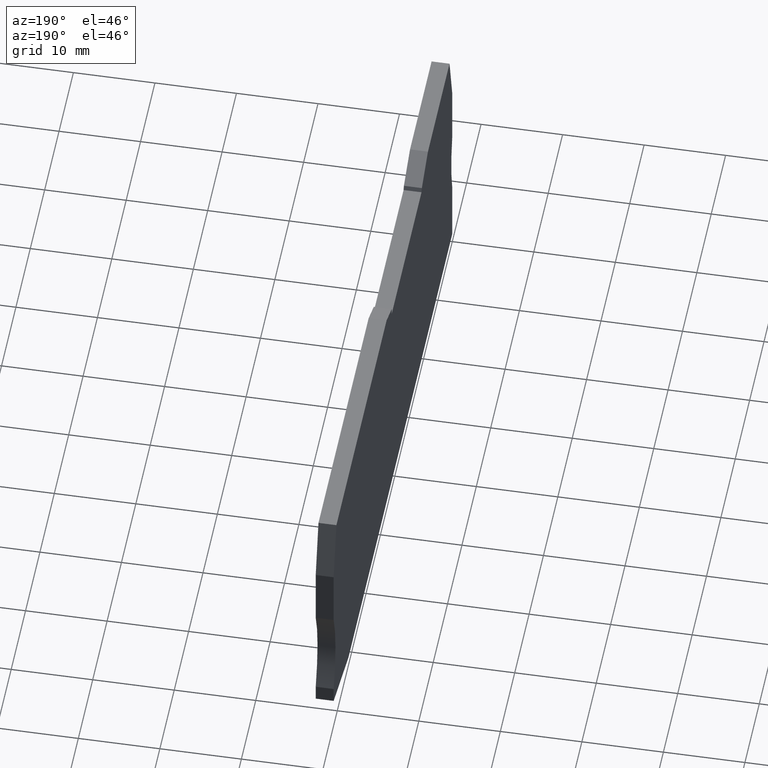
[diagram: clean part render]
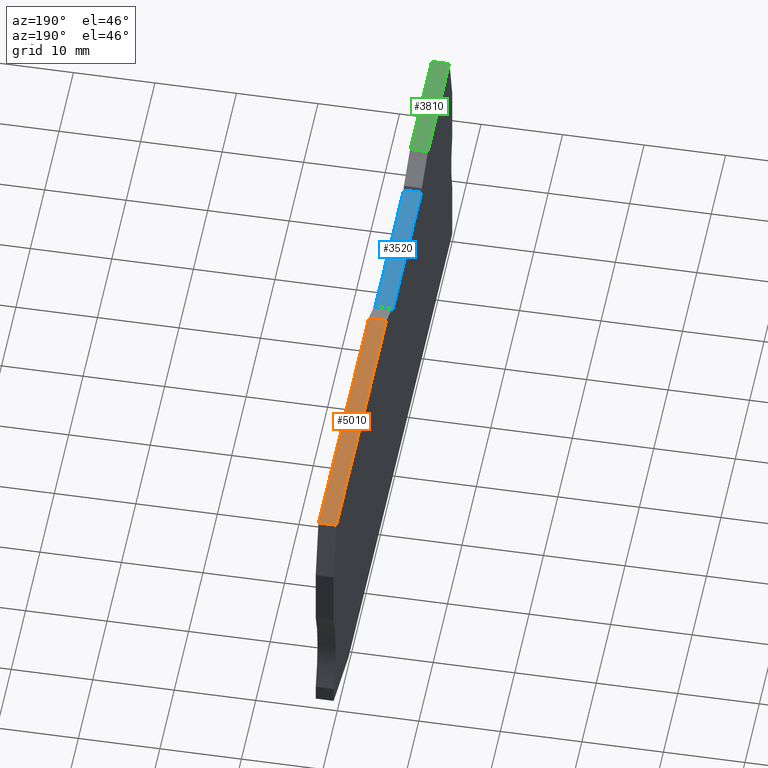
[diagram: same view with three faces highlighted in distinct colors, each labeled with its STEP entity id]
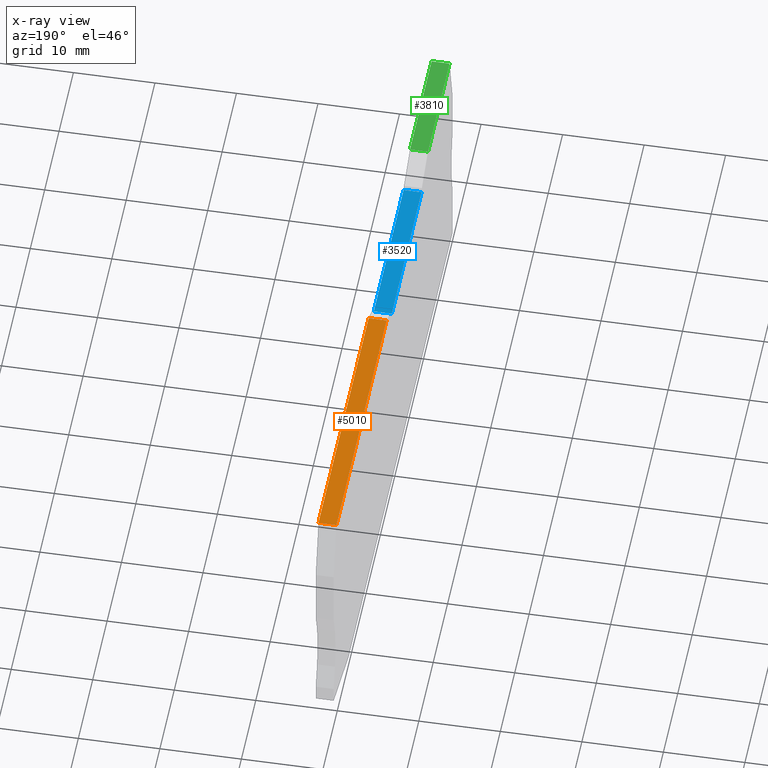
[diagram: x-ray of the same camera — body ghosted, the three highlighted faces saturated]
A machine part, auxiliary view with three faces highlighted in distinct colors.
The next image is the same camera in x-ray (body ghosted, the three faces saturated) — at least one of them is partly hidden behind the body in this view.
Their STEP definitions:

[orange] entity #5010 — the highlighted planar face has unit normal (0, -0, 1).
#530=CARTESIAN_POINT('',(89.323076435176,-6.65000000001358,
-2.22044604925031E-14));
#540=VERTEX_POINT('',#530);
#570=CARTESIAN_POINT('',(47.920285,-6.65000000001358,
-2.22044604925031E-14));
#580=DIRECTION('',(-1.,-2.77555756156289E-17,0.));
#590=VECTOR('',#580,1.);
#600=LINE('',#570,#590);
#610=CARTESIAN_POINT('',(54.4296808260525,-6.65000000001358,
-2.22044604925031E-14));
#620=VERTEX_POINT('',#610);
#630=EDGE_CURVE('',#540,#620,#600,.T.);
#2380=CARTESIAN_POINT('',(54.4296808260525,-6.65000000001358,
2.19999999999998));
#2390=VERTEX_POINT('',#2380);
#2420=CARTESIAN_POINT('',(47.920285,-6.65000000001358,2.19999999999998))
;
#2430=DIRECTION('',(-1.,-2.77555756156289E-17,0.));
#2440=VECTOR('',#2430,1.);
#2450=LINE('',#2420,#2440);
#2460=CARTESIAN_POINT('',(89.323076435176,-6.65000000001358,
2.19999999999998));
#2470=VERTEX_POINT('',#2460);
#2480=EDGE_CURVE('',#2470,#2390,#2450,.T.);
#4490=CARTESIAN_POINT('',(54.4296808260525,-6.65000000001358,
-2.1316282072803E-14));
#4500=DIRECTION('',(0.,0.,1.));
#4510=VECTOR('',#4500,1.);
#4520=LINE('',#4490,#4510);
#4530=EDGE_CURVE('',#620,#2390,#4520,.T.);
#4850=CARTESIAN_POINT('',(88.9394129411867,-6.65000000001358,
2.19999999999998));
#4860=DIRECTION('',(-2.77555756156289E-17,1.,0.));
#4870=DIRECTION('',(1.,2.77555756156289E-17,0.));
#4880=AXIS2_PLACEMENT_3D('',#4850,#4860,#4870);
#4890=PLANE('',#4880);
#4900=ORIENTED_EDGE('',*,*,#2480,.F.);
#4910=ORIENTED_EDGE('',*,*,#4530,.T.);
#4920=ORIENTED_EDGE('',*,*,#630,.T.);
#4930=CARTESIAN_POINT('',(89.323076435176,-6.65000000001358,
-2.1316282072803E-14));
#4940=DIRECTION('',(0.,0.,1.));
#4950=VECTOR('',#4940,1.);
#4960=LINE('',#4930,#4950);
#4970=EDGE_CURVE('',#540,#2470,#4960,.T.);
#4980=ORIENTED_EDGE('',*,*,#4970,.F.);
#4990=EDGE_LOOP('',(#4980,#4920,#4910,#4900));
#5000=FACE_OUTER_BOUND('',#4990,.T.);
#5010=ADVANCED_FACE('',(#5000),#4890,.T.);

[blue] entity #3520 — the highlighted planar face has unit normal (0, -0, 1).
#770=CARTESIAN_POINT('',(50.8284150539722,-9.15000000001104,
-2.22044604925031E-14));
#780=VERTEX_POINT('',#770);
#810=CARTESIAN_POINT('',(47.920285,-9.15000000001104,
-2.22044604925031E-14));
#820=DIRECTION('',(1.,6.69640348774667E-16,0.));
#830=VECTOR('',#820,1.);
#840=LINE('',#810,#830);
#850=CARTESIAN_POINT('',(30.1111811089338,-9.15000000001105,
-2.22044604925031E-14));
#860=VERTEX_POINT('',#850);
#870=EDGE_CURVE('',#860,#780,#840,.T.);
#2140=CARTESIAN_POINT('',(30.1111811089338,-9.15000000001106,
2.19999999999998));
#2150=VERTEX_POINT('',#2140);
#2180=CARTESIAN_POINT('',(47.920285,-9.15000000001105,2.19999999999998))
;
#2190=DIRECTION('',(-1.,-6.69640348774667E-16,0.));
#2200=VECTOR('',#2190,1.);
#2210=LINE('',#2180,#2200);
#2220=CARTESIAN_POINT('',(50.8284150539722,-9.15000000001105,
2.19999999999998));
#2230=VERTEX_POINT('',#2220);
#2240=EDGE_CURVE('',#2230,#2150,#2210,.T.);
#3190=CARTESIAN_POINT('',(30.1111811089338,-9.15000000001105,
-2.1316282072803E-14));
#3200=DIRECTION('',(-1.92535423529343E-15,4.55546761142705E-15,-1.));
#3210=VECTOR('',#3200,1.);
#3220=LINE('',#3190,#3210);
#3230=EDGE_CURVE('',#2150,#860,#3220,.T.);
#3360=CARTESIAN_POINT('',(40.4300980895686,-9.15000000001106,
2.10000000003397));
#3370=DIRECTION('',(-6.69640348774667E-16,1.,4.55546761142705E-15));
#3380=DIRECTION('',(1.,6.69640348774745E-16,-1.70351068697075E-14));
#3390=AXIS2_PLACEMENT_3D('',#3360,#3370,#3380);
#3400=PLANE('',#3390);
#3410=ORIENTED_EDGE('',*,*,#2240,.F.);
#3420=ORIENTED_EDGE('',*,*,#3230,.F.);
#3430=ORIENTED_EDGE('',*,*,#870,.F.);
#3440=CARTESIAN_POINT('',(50.8284150539722,-9.15000000001104,
-2.1316282072803E-14));
#3450=DIRECTION('',(0.,-4.55546761142705E-15,1.));
#3460=VECTOR('',#3450,1.);
#3470=LINE('',#3440,#3460);
#3480=EDGE_CURVE('',#780,#2230,#3470,.T.);
#3490=ORIENTED_EDGE('',*,*,#3480,.F.);
#3500=EDGE_LOOP('',(#3490,#3430,#3420,#3410));
#3510=FACE_OUTER_BOUND('',#3500,.T.);
#3520=ADVANCED_FACE('',(#3510),#3400,.T.);

[green] entity #3810 — the highlighted planar face has unit normal (0, 0, 1).
#1010=CARTESIAN_POINT('',(25.6296808273747,-6.65000000001358,
-2.22044604925031E-14));
#1020=VERTEX_POINT('',#1010);
#1050=CARTESIAN_POINT('',(47.920285,-6.65000000001358,
-2.22044604925031E-14));
#1060=DIRECTION('',(-1.,3.77302406067959E-29,0.));
#1070=VECTOR('',#1060,1.);
#1080=LINE('',#1050,#1070);
#1090=CARTESIAN_POINT('',(10.6362852169109,-6.65000000001358,
-2.22044604925031E-14));
#1100=VERTEX_POINT('',#1090);
#1110=EDGE_CURVE('',#1020,#1100,#1080,.T.);
#1900=CARTESIAN_POINT('',(10.6362852169109,-6.65000000001358,
2.19999999999998));
#1910=VERTEX_POINT('',#1900);
#1940=CARTESIAN_POINT('',(47.920285,-6.65000000001358,2.19999999999998))
;
#1950=DIRECTION('',(-1.,3.77302406067959E-29,0.));
#1960=VECTOR('',#1950,1.);
#1970=LINE('',#1940,#1960);
#1980=CARTESIAN_POINT('',(25.6296808273747,-6.65000000001358,
2.19999999999998));
#1990=VERTEX_POINT('',#1980);
#2000=EDGE_CURVE('',#1990,#1910,#1970,.T.);
#3600=CARTESIAN_POINT('',(25.5188334960532,-6.65000000001358,
2.19999999999998));
#3610=DIRECTION('',(3.77302406067959E-29,1.,0.));
#3620=DIRECTION('',(1.,-3.77302406067959E-29,0.));
#3630=AXIS2_PLACEMENT_3D('',#3600,#3610,#3620);
#3640=PLANE('',#3630);
#3650=ORIENTED_EDGE('',*,*,#2000,.F.);
#3660=CARTESIAN_POINT('',(10.6362852169109,-6.65000000001358,
-2.1316282072803E-14));
#3670=DIRECTION('',(0.,0.,1.));
#3680=VECTOR('',#3670,1.);
#3690=LINE('',#3660,#3680);
#3700=EDGE_CURVE('',#1100,#1910,#3690,.T.);
#3710=ORIENTED_EDGE('',*,*,#3700,.T.);
#3720=ORIENTED_EDGE('',*,*,#1110,.T.);
#3730=CARTESIAN_POINT('',(25.6296808273747,-6.65000000001357,
-2.1316282072803E-14));
#3740=DIRECTION('',(0.,0.,1.));
#3750=VECTOR('',#3740,1.);
#3760=LINE('',#3730,#3750);
#3770=EDGE_CURVE('',#1020,#1990,#3760,.T.);
#3780=ORIENTED_EDGE('',*,*,#3770,.F.);
#3790=EDGE_LOOP('',(#3780,#3720,#3710,#3650));
#3800=FACE_OUTER_BOUND('',#3790,.T.);
#3810=ADVANCED_FACE('',(#3800),#3640,.T.);